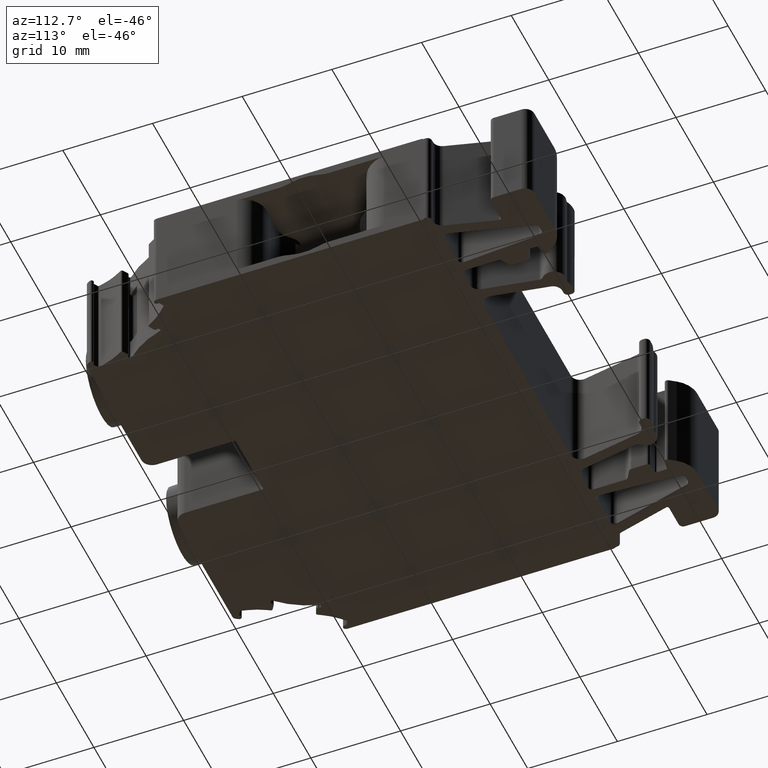
[diagram: clean part render]
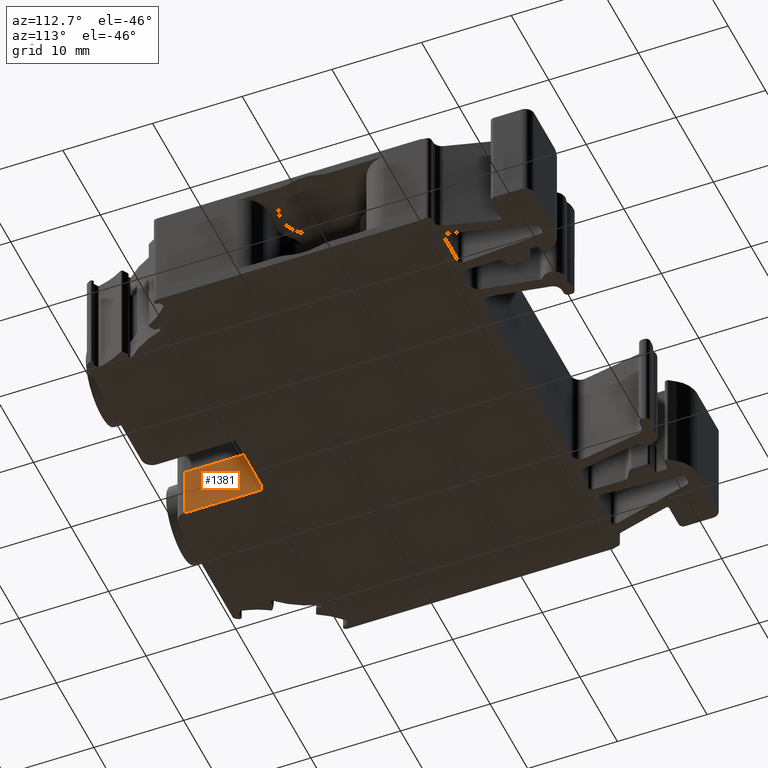
[diagram: same view with one face highlighted and labeled with its STEP entity id]
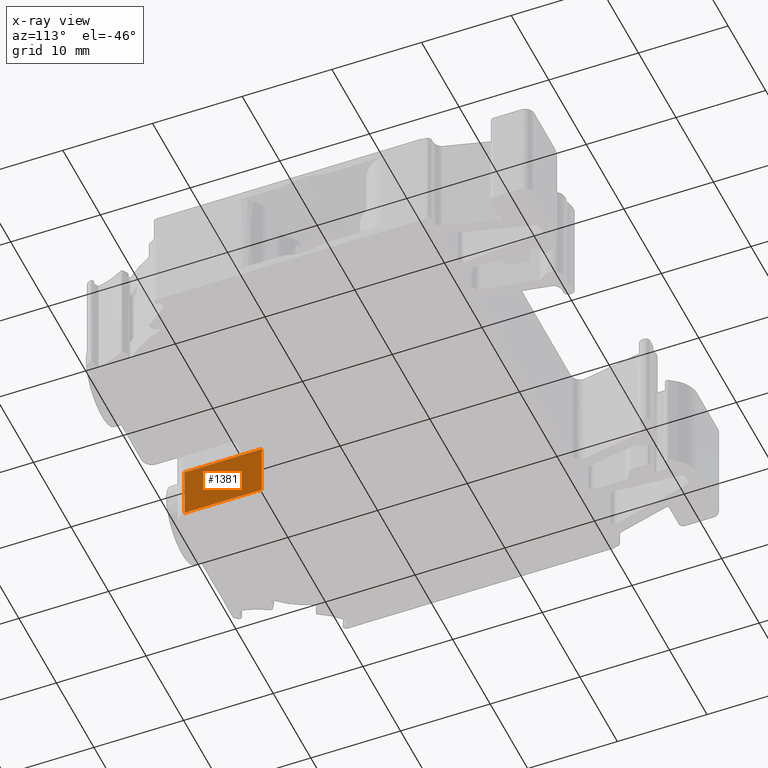
[diagram: x-ray of the same camera — body ghosted, the highlighted face saturated]
A machine part, auxiliary view. The second image highlights one B-rep face of the part: STEP entity #1381.
The next image is the same camera in x-ray: the body ghosted, the highlighted face saturated — about 1% of this face is hidden behind the body in this view.
In plain terms, the highlighted planar face has unit normal (1, 0, -0).
Its self-contained STEP definition (entity closure, byte-faithful):
#1381 = ADVANCED_FACE ( 'NONE', ( #19074 ), #19048, .T. ) ;
#2518 = VECTOR ( 'NONE', #21162, 1000.000000000000000 ) ;
#5036 = LINE ( 'NONE', #5082, #12255 ) ;
#5045 = DIRECTION ( 'NONE',  ( -9.511910199348050000E-014, 0.0000000000000000000, -1.000000000000000000 ) ) ;
#5082 = CARTESIAN_POINT ( 'NONE',  ( -113.6691447349464600, 201.1316494433980300, -77.55198370773739200 ) ) ;
#5094 = DIRECTION ( 'NONE',  ( 9.511910199348050000E-014, -0.0000000000000000000, 1.000000000000000000 ) ) ;
#5120 = CARTESIAN_POINT ( 'NONE',  ( -113.6691447349465000, 209.7313347132310400, -77.55198370773739200 ) ) ;
#5134 = LINE ( 'NONE', #5120, #12219 ) ;
#5206 = CARTESIAN_POINT ( 'NONE',  ( -113.6691447349527200, 209.7321706716763600, -142.9317476525574500 ) ) ;
#5218 = CARTESIAN_POINT ( 'NONE',  ( -113.6691447349526400, 209.7338425885680500, -142.5330871800771900 ) ) ;
#5225 = CARTESIAN_POINT ( 'NONE',  ( -113.6691447349527800, 209.7313347132306400, -143.1310778432201400 ) ) ;
#5239 = CARTESIAN_POINT ( 'NONE',  ( -113.6691447349527000, 209.7330066301221900, -142.7324174163173000 ) ) ;
#5274 = LINE ( 'NONE', #5288, #12200 ) ;
#5276 = DIRECTION ( 'NONE',  ( 1.626426964119273000E-027, 1.000000000000000000, 3.704122705312691000E-014 ) ) ;
#5288 = CARTESIAN_POINT ( 'NONE',  ( -113.6691447349526100, 235.5633297841060600, -142.5330871800761700 ) ) ;
#5423 = CARTESIAN_POINT ( 'NONE',  ( -113.6691447349526400, 209.7338425885680500, -142.5330871800771900 ) ) ;
#5500 = CARTESIAN_POINT ( 'NONE',  ( -113.6691447349526200, 201.1316494433980300, -142.5330871800773600 ) ) ;
#5505 = CARTESIAN_POINT ( 'NONE',  ( -113.6691447349527800, 209.7313347132306400, -143.1310778432201400 ) ) ;
#8410 = VERTEX_POINT ( 'NONE', #9918 ) ;
#8454 = VERTEX_POINT ( 'NONE', #9984 ) ;
#8697 = VERTEX_POINT ( 'NONE', #5423 ) ;
#8739 = VERTEX_POINT ( 'NONE', #5505 ) ;
#8754 = VERTEX_POINT ( 'NONE', #5500 ) ;
#9918 = CARTESIAN_POINT ( 'NONE',  ( -113.6691447349533600, 209.7313347132310400, -148.5307464663934000 ) ) ;
#9984 = CARTESIAN_POINT ( 'NONE',  ( -113.6691447349532100, 201.1316494433982900, -148.5307464663938200 ) ) ;
#12200 = VECTOR ( 'NONE', #5276, 1000.000000000000000 ) ;
#12219 = VECTOR ( 'NONE', #5094, 1000.000000000000000 ) ;
#12255 = VECTOR ( 'NONE', #5045, 1000.000000000000000 ) ;
#12628 = B_SPLINE_CURVE_WITH_KNOTS ( 'NONE', 3,
 ( #5225, #5206, #5239, #5218 ),
 .UNSPECIFIED., .F., .F.,
 ( 4, 4 ),
 ( 0.0000000000000000000, 1.000000000000000000 ),
 .UNSPECIFIED. ) ;
#15024 = EDGE_CURVE ( 'NONE', #8754, #8454, #5036, .T. ) ;
#15041 = EDGE_CURVE ( 'NONE', #8410, #8739, #5134, .T. ) ;
#15056 = EDGE_CURVE ( 'NONE', #8739, #8697, #12628, .T. ) ;
#15073 = EDGE_CURVE ( 'NONE', #8754, #8697, #5274, .T. ) ;
#15576 = EDGE_CURVE ( 'NONE', #8410, #8454, #21165, .T. ) ;
#19042 = CARTESIAN_POINT ( 'NONE',  ( -113.6691447349464400, 199.9316933592309900, -77.55198370773739200 ) ) ;
#19048 = PLANE ( 'NONE',  #21791 ) ;
#19074 = FACE_OUTER_BOUND ( 'NONE', #22846, .T. ) ;
#19097 = DIRECTION ( 'NONE',  ( 1.000000000000000000, 7.077671781988959900E-015, -9.511910199348050000E-014 ) ) ;
#19121 = DIRECTION ( 'NONE',  ( -9.511910199348050000E-014, 0.0000000000000000000, -1.000000000000000000 ) ) ;
#21154 = CARTESIAN_POINT ( 'NONE',  ( -113.6691447349533100, 200.4316750609705200, -148.5307464663937900 ) ) ;
#21162 = DIRECTION ( 'NONE',  ( -0.0000000000000000000, -1.000000000000000000, -5.748952264551389800E-014 ) ) ;
#21165 = LINE ( 'NONE', #21154, #2518 ) ;
#21791 = AXIS2_PLACEMENT_3D ( 'NONE', #19042, #19097, #19121 ) ;
#22572 = ORIENTED_EDGE ( 'NONE', *, *, #15041, .T. ) ;
#22575 = ORIENTED_EDGE ( 'NONE', *, *, #15024, .T. ) ;
#22578 = ORIENTED_EDGE ( 'NONE', *, *, #15056, .T. ) ;
#22592 = ORIENTED_EDGE ( 'NONE', *, *, #15576, .F. ) ;
#22607 = ORIENTED_EDGE ( 'NONE', *, *, #15073, .F. ) ;
#22846 = EDGE_LOOP ( 'NONE', ( #22578, #22607, #22575, #22592, #22572 ) ) ;